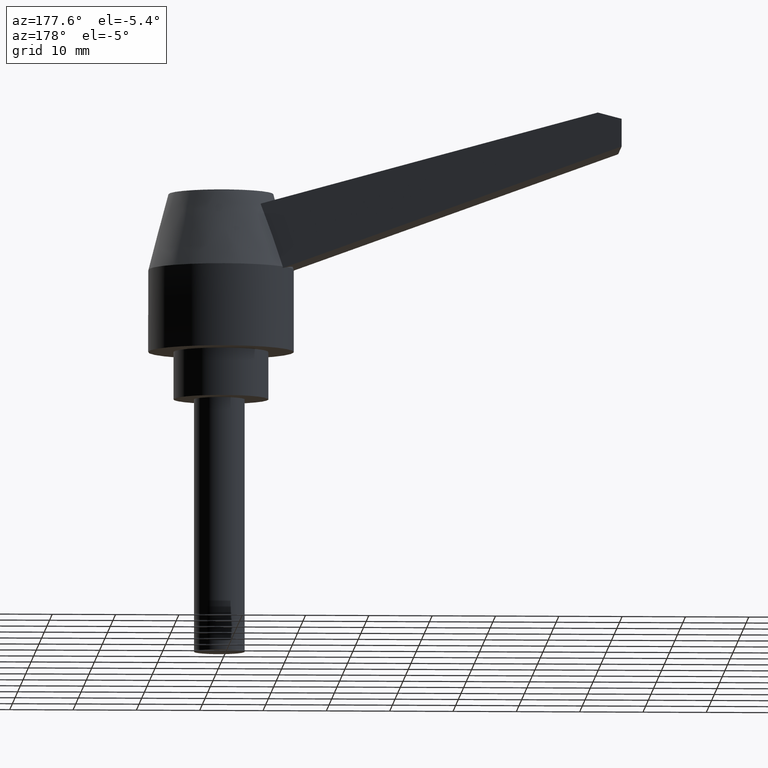
[diagram: clean part render]
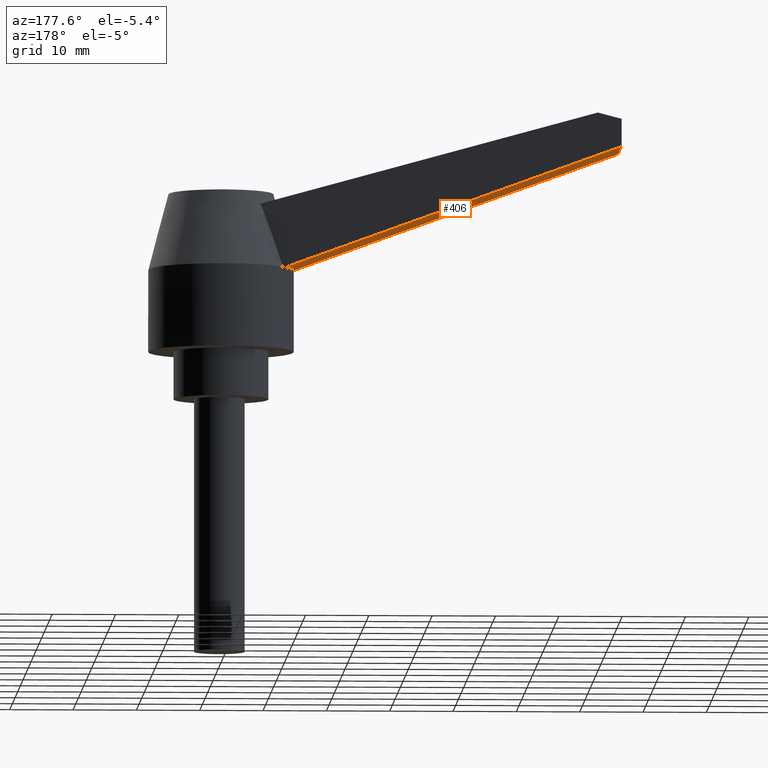
[diagram: same view with one face highlighted and labeled with its STEP entity id]
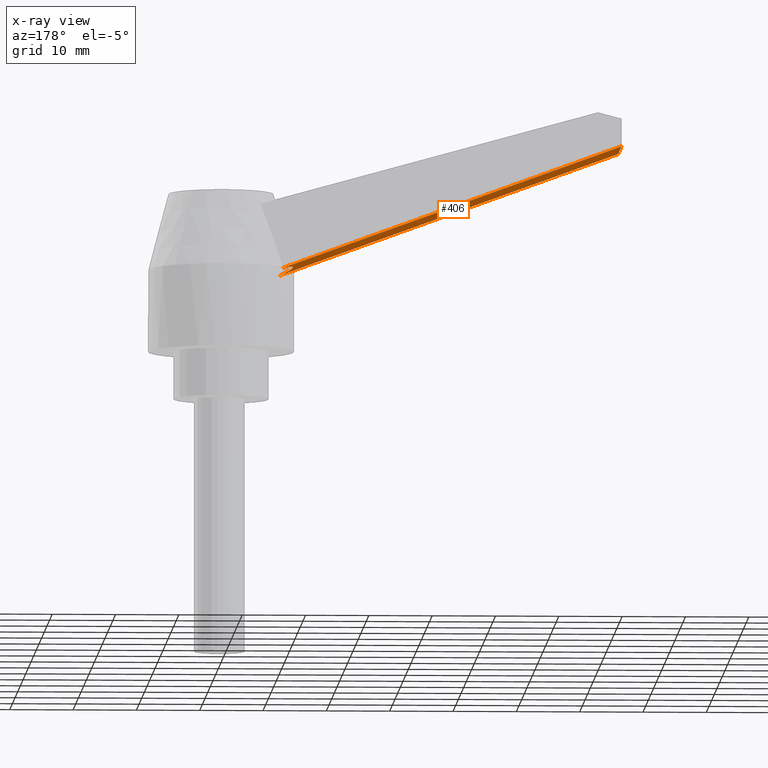
[diagram: x-ray of the same camera — body ghosted, the highlighted face saturated]
A machine part, auxiliary view. The second image highlights one B-rep face of the part: STEP entity #406.
The next image is the same camera in x-ray: the body ghosted, the highlighted face saturated — about 0% of this face is hidden behind the body in this view.
In plain terms, the highlighted planar face has unit normal (-0.342, -0, -0.9397).
Its self-contained STEP definition (entity closure, byte-faithful):
#207=CARTESIAN_POINT('',(-10.208130721623393,5.295664941274871,20.500000000000014));
#208=VERTEX_POINT('',#207);
#216=CARTESIAN_POINT('',(-9.486832980505104,6.499999999999932,20.237469092189500));
#217=VERTEX_POINT('',#216);
#218=CARTESIAN_POINT('',(0.0,9.154488E-016,16.784544269830704));
#219=DIRECTION('',(-0.342020143325670,-1.045960E-015,-0.939692620785908));
#220=DIRECTION('',(-0.939692620785908,2.429873E-016,0.342020143325670));
#221=AXIS2_PLACEMENT_3D('',#218,#219,#220);
#222=ELLIPSE('',#221,12.238044383472985,11.500000000000000);
#223=EDGE_CURVE('',#208,#217,#222,.T.);
#242=CARTESIAN_POINT('',(-9.486832980505023,-6.500000000000092,20.237469092189514));
#243=VERTEX_POINT('',#242);
#250=CARTESIAN_POINT('',(-10.208130721623391,-5.295664941275032,20.500000000000028));
#251=VERTEX_POINT('',#250);
#252=CARTESIAN_POINT('',(0.0,9.154488E-016,16.784544269830704));
#253=DIRECTION('',(-0.342020143325670,-1.045960E-015,-0.939692620785908));
#254=DIRECTION('',(-0.939692620785908,2.429873E-016,0.342020143325670));
#255=AXIS2_PLACEMENT_3D('',#252,#253,#254);
#256=ELLIPSE('',#255,12.238044383472985,11.500000000000000);
#257=EDGE_CURVE('',#243,#251,#256,.T.);
#353=CARTESIAN_POINT('',(4.440892E-016,-6.500000000000132,16.784544269830732));
#354=DIRECTION('',(-0.342020143325670,-1.045960E-015,-0.939692620785908));
#355=DIRECTION('',(-0.939692620785908,2.429873E-016,0.342020143325670));
#356=AXIS2_PLACEMENT_3D('',#353,#354,#355);
#357=PLANE('',#356);
#358=CARTESIAN_POINT('',(-62.999999999999986,-6.500000000000179,39.714669028601548));
#359=VERTEX_POINT('',#358);
#360=CARTESIAN_POINT('',(-62.999999999999986,6.499999999999932,39.714669028601534));
#361=VERTEX_POINT('',#360);
#362=CARTESIAN_POINT('',(-62.999999999999986,-6.500000000000179,39.714669028601548));
#363=DIRECTION('',(0.0,1.0,0.0));
#364=VECTOR('',#363,13.0);
#365=LINE('',#362,#364);
#366=EDGE_CURVE('',#359,#361,#365,.T.);
#367=ORIENTED_EDGE('',*,*,#366,.T.);
#368=CARTESIAN_POINT('',(-9.486832980505103,6.499999999999975,20.237469092189507));
#369=DIRECTION('',(-0.939692620785908,2.339465E-016,0.342020143325670));
#370=VECTOR('',#369,56.947522876937526);
#371=LINE('',#368,#370);
#372=EDGE_CURVE('',#217,#361,#371,.T.);
#373=ORIENTED_EDGE('',*,*,#372,.F.);
#374=ORIENTED_EDGE('',*,*,#223,.F.);
#375=CARTESIAN_POINT('',(-11.385205188379185,3.933177E-016,20.928420069413917));
#376=VERTEX_POINT('',#375);
#377=CARTESIAN_POINT('',(-11.385205188379185,3.933177E-016,20.928420069413917));
#378=CARTESIAN_POINT('',(-11.385205188379185,0.389622418439146,20.928420069413917));
#379=CARTESIAN_POINT('',(-11.341405708508288,1.325237958425406,20.912478362521895));
#380=CARTESIAN_POINT('',(-11.109691372403116,2.769173164005345,20.828141241252482));
#381=CARTESIAN_POINT('',(-10.702807816468274,4.146157300515532,20.680047738100129));
#382=CARTESIAN_POINT('',(-10.362396491330117,4.965625003143130,20.556148148339446));
#383=CARTESIAN_POINT('',(-10.208130721623393,5.295664941274871,20.500000000000014));
#384=B_SPLINE_CURVE_WITH_KNOTS('',3,(#377,#378,#379,#380,#381,#382,#383),.UNSPECIFIED.,.F.,.U.,(4,1,1,1,4),(0.0,1.169337317091274,2.806017722713428,4.384264346576929,5.490487280362336),.UNSPECIFIED.);
#385=EDGE_CURVE('',#376,#208,#384,.T.);
#386=ORIENTED_EDGE('',*,*,#385,.F.);
#387=CARTESIAN_POINT('',(-11.385205188379185,3.933177E-016,20.928420069413917));
#388=CARTESIAN_POINT('',(-11.385205188379185,-0.389622418439306,20.928420069413917));
#389=CARTESIAN_POINT('',(-11.341405708508450,-1.325237958425726,20.912478362521924));
#390=CARTESIAN_POINT('',(-11.109691372403116,-2.769173164005828,20.828141241252439));
#391=CARTESIAN_POINT('',(-10.702807816468273,-4.146157300515693,20.680047738100114));
#392=CARTESIAN_POINT('',(-10.362396491330117,-4.965625003143290,20.556148148339446));
#393=CARTESIAN_POINT('',(-10.208130721623391,-5.295664941275032,20.500000000000028));
#394=B_SPLINE_CURVE_WITH_KNOTS('',3,(#387,#388,#389,#390,#391,#392,#393),.UNSPECIFIED.,.F.,.U.,(4,1,1,1,4),(0.0,1.169337317091274,2.806017722713428,4.384264346576919,5.490487280362337),.UNSPECIFIED.);
#395=EDGE_CURVE('',#376,#251,#394,.T.);
#396=ORIENTED_EDGE('',*,*,#395,.T.);
#397=ORIENTED_EDGE('',*,*,#257,.F.);
#398=CARTESIAN_POINT('',(-9.486832980505103,-6.500000000000130,20.237469092189521));
#399=DIRECTION('',(-0.939692620785908,2.339465E-016,0.342020143325670));
#400=VECTOR('',#399,56.947522876937526);
#401=LINE('',#398,#400);
#402=EDGE_CURVE('',#243,#359,#401,.T.);
#403=ORIENTED_EDGE('',*,*,#402,.T.);
#404=EDGE_LOOP('',(#367,#373,#374,#386,#396,#397,#403));
#405=FACE_OUTER_BOUND('',#404,.T.);
#406=ADVANCED_FACE('',(#405),#357,.T.);